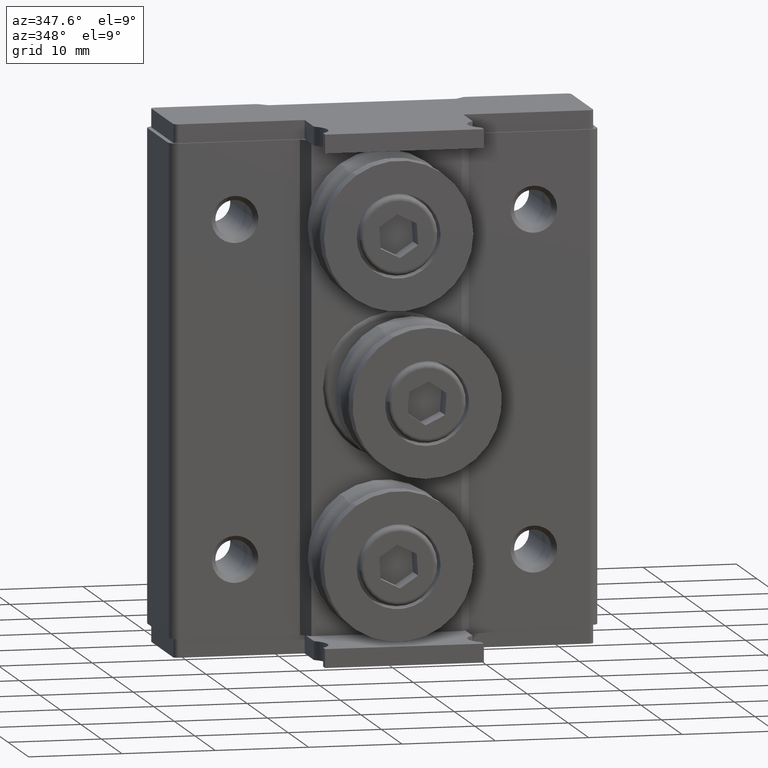
[diagram: clean part render]
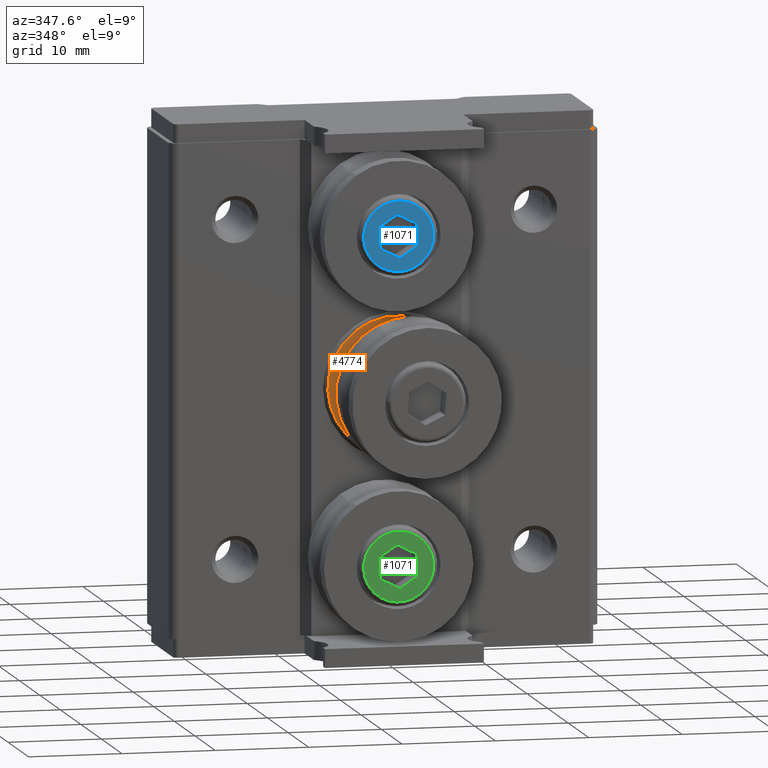
[diagram: same view with three faces highlighted in distinct colors, each labeled with its STEP entity id]
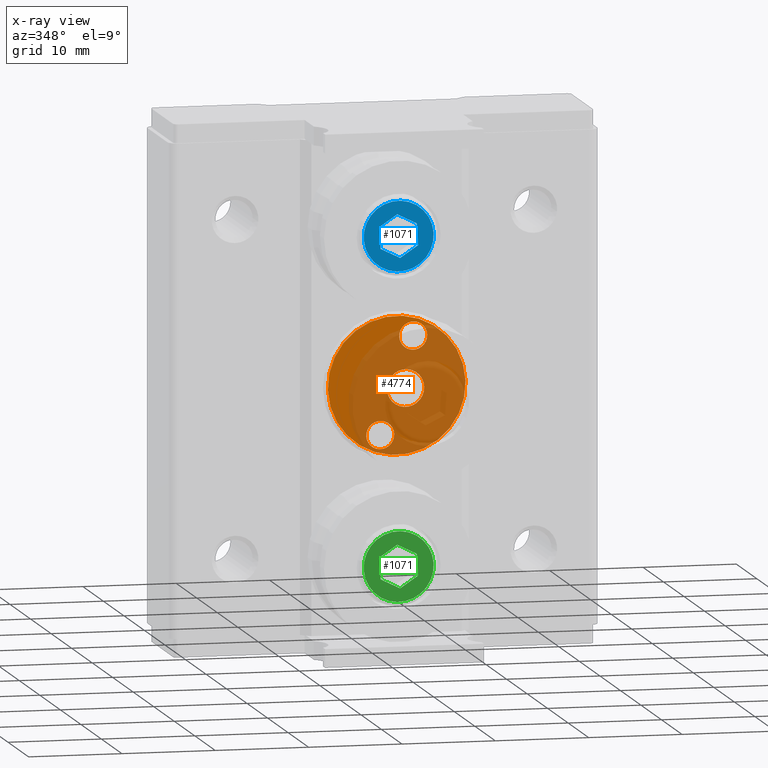
[diagram: x-ray of the same camera — body ghosted, the three highlighted faces saturated]
A machine part, auxiliary view with three faces highlighted in distinct colors.
The next image is the same camera in x-ray (body ghosted, the three faces saturated) — at least one of them is partly hidden behind the body in this view.
Their STEP definitions:

[orange] entity #4774 — the highlighted planar face has unit normal (0, 1, 0).
#120 = CIRCLE ( 'NONE', #1604, 7.375000000000000000 ) ;
#190 = CARTESIAN_POINT ( 'NONE',  ( 0.000000000000000000, 0.000000000000000000, 0.000000000000000000 ) ) ;
#455 = DIRECTION ( 'NONE',  ( 0.000000000000000000, 0.000000000000000000, 1.000000000000000000 ) ) ;
#588 = DIRECTION ( 'NONE',  ( 0.000000000000000000, 0.000000000000000000, 1.000000000000000000 ) ) ;
#740 = VERTEX_POINT ( 'NONE', #4454 ) ;
#776 = AXIS2_PLACEMENT_3D ( 'NONE', #1364, #1699, #3202 ) ;
#797 = DIRECTION ( 'NONE',  ( 0.000000000000000000, 0.000000000000000000, 1.000000000000000000 ) ) ;
#809 = ORIENTED_EDGE ( 'NONE', *, *, #3920, .T. ) ;
#811 = EDGE_CURVE ( 'NONE', #1679, #1968, #1495, .T. ) ;
#941 = DIRECTION ( 'NONE',  ( 0.000000000000000000, 0.000000000000000000, 1.000000000000000000 ) ) ;
#945 = CIRCLE ( 'NONE', #3666, 2.000000000000000000 ) ;
#958 = CARTESIAN_POINT ( 'NONE',  ( 0.000000000000000000, 0.000000000000000000, 5.500000000000000000 ) ) ;
#996 = CARTESIAN_POINT ( 'NONE',  ( 1.836970198721029934E-16, 0.000000000000000000, 3.999999999999999112 ) ) ;
#1007 = DIRECTION ( 'NONE',  ( -0.000000000000000000, -1.000000000000000000, -0.000000000000000000 ) ) ;
#1153 = DIRECTION ( 'NONE',  ( 0.000000000000000000, 0.000000000000000000, 1.000000000000000000 ) ) ;
#1176 = CIRCLE ( 'NONE', #3885, 1.500000000000000444 ) ;
#1228 = EDGE_CURVE ( 'NONE', #3720, #1367, #1754, .T. ) ;
#1229 = CARTESIAN_POINT ( 'NONE',  ( -1.000000000000000000, 0.000000000000000000, 0.000000000000000000 ) ) ;
#1312 = ORIENTED_EDGE ( 'NONE', *, *, #811, .T. ) ;
#1364 = CARTESIAN_POINT ( 'NONE',  ( 0.000000000000000000, 0.000000000000000000, 0.000000000000000000 ) ) ;
#1367 = VERTEX_POINT ( 'NONE', #3706 ) ;
#1412 = FACE_BOUND ( 'NONE', #2859, .T. ) ;
#1417 = CIRCLE ( 'NONE', #3262, 1.500000000000000444 ) ;
#1495 = CIRCLE ( 'NONE', #4210, 2.000000000000000000 ) ;
#1577 = VERTEX_POINT ( 'NONE', #3833 ) ;
#1604 = AXIS2_PLACEMENT_3D ( 'NONE', #190, #1701, #3988 ) ;
#1621 = VERTEX_POINT ( 'NONE', #1739 ) ;
#1679 = VERTEX_POINT ( 'NONE', #2456 ) ;
#1699 = DIRECTION ( 'NONE',  ( 0.000000000000000000, 1.000000000000000000, 0.000000000000000000 ) ) ;
#1701 = DIRECTION ( 'NONE',  ( -0.000000000000000000, -1.000000000000000000, -0.000000000000000000 ) ) ;
#1739 = CARTESIAN_POINT ( 'NONE',  ( 0.000000000000000000, 0.000000000000000000, -3.999999999999999112 ) ) ;
#1741 = CARTESIAN_POINT ( 'NONE',  ( 0.000000000000000000, 0.000000000000000000, -5.500000000000000000 ) ) ;
#1754 = CIRCLE ( 'NONE', #3305, 7.375000000000000000 ) ;
#1802 = CARTESIAN_POINT ( 'NONE',  ( 0.000000000000000000, 0.000000000000000000, -5.500000000000000000 ) ) ;
#1968 = VERTEX_POINT ( 'NONE', #2151 ) ;
#2057 = DIRECTION ( 'NONE',  ( 0.000000000000000000, 0.000000000000000000, 1.000000000000000000 ) ) ;
#2093 = ORIENTED_EDGE ( 'NONE', *, *, #3816, .T. ) ;
#2102 = CIRCLE ( 'NONE', #3419, 1.500000000000000444 ) ;
#2151 = CARTESIAN_POINT ( 'NONE',  ( -1.000000000000000000, 0.000000000000000000, 2.000000000000000000 ) ) ;
#2153 = DIRECTION ( 'NONE',  ( 0.000000000000000000, 1.000000000000000000, 0.000000000000000000 ) ) ;
#2287 = VERTEX_POINT ( 'NONE', #996 ) ;
#2312 = ORIENTED_EDGE ( 'NONE', *, *, #3598, .T. ) ;
#2323 = EDGE_LOOP ( 'NONE', ( #2312, #1312 ) ) ;
#2456 = CARTESIAN_POINT ( 'NONE',  ( -0.9999999999999997780, 0.000000000000000000, -2.000000000000000000 ) ) ;
#2738 = EDGE_CURVE ( 'NONE', #1367, #3720, #120, .T. ) ;
#2749 = ORIENTED_EDGE ( 'NONE', *, *, #4626, .T. ) ;
#2778 = CARTESIAN_POINT ( 'NONE',  ( 0.000000000000000000, 0.000000000000000000, 5.500000000000000000 ) ) ;
#2792 = AXIS2_PLACEMENT_3D ( 'NONE', #958, #2153, #588 ) ;
#2837 = EDGE_LOOP ( 'NONE', ( #4037, #3444 ) ) ;
#2859 = EDGE_LOOP ( 'NONE', ( #2093, #4408 ) ) ;
#2928 = EDGE_CURVE ( 'NONE', #740, #1621, #1176, .T. ) ;
#3202 = DIRECTION ( 'NONE',  ( 0.000000000000000000, -0.000000000000000000, 1.000000000000000000 ) ) ;
#3218 = CARTESIAN_POINT ( 'NONE',  ( 0.000000000000000000, 0.000000000000000000, 0.000000000000000000 ) ) ;
#3262 = AXIS2_PLACEMENT_3D ( 'NONE', #1741, #4358, #3271 ) ;
#3269 = CIRCLE ( 'NONE', #2792, 1.500000000000000444 ) ;
#3271 = DIRECTION ( 'NONE',  ( 0.000000000000000000, 0.000000000000000000, 1.000000000000000000 ) ) ;
#3286 = DIRECTION ( 'NONE',  ( 0.000000000000000000, 1.000000000000000000, 0.000000000000000000 ) ) ;
#3305 = AXIS2_PLACEMENT_3D ( 'NONE', #3218, #1007, #2057 ) ;
#3344 = CARTESIAN_POINT ( 'NONE',  ( -1.000000000000000000, 0.000000000000000000, 0.000000000000000000 ) ) ;
#3419 = AXIS2_PLACEMENT_3D ( 'NONE', #2778, #4268, #941 ) ;
#3444 = ORIENTED_EDGE ( 'NONE', *, *, #1228, .T. ) ;
#3465 = CARTESIAN_POINT ( 'NONE',  ( 9.337931843498566880E-16, 0.000000000000000000, -7.375000000000000000 ) ) ;
#3598 = EDGE_CURVE ( 'NONE', #1968, #1679, #945, .T. ) ;
#3666 = AXIS2_PLACEMENT_3D ( 'NONE', #3344, #4119, #797 ) ;
#3706 = CARTESIAN_POINT ( 'NONE',  ( 0.000000000000000000, 0.000000000000000000, 7.375000000000000000 ) ) ;
#3720 = VERTEX_POINT ( 'NONE', #3465 ) ;
#3749 = DIRECTION ( 'NONE',  ( 0.000000000000000000, 1.000000000000000000, 0.000000000000000000 ) ) ;
#3816 = EDGE_CURVE ( 'NONE', #1621, #740, #1417, .T. ) ;
#3833 = CARTESIAN_POINT ( 'NONE',  ( 0.000000000000000000, 0.000000000000000000, 7.000000000000000000 ) ) ;
#3885 = AXIS2_PLACEMENT_3D ( 'NONE', #1802, #3286, #455 ) ;
#3920 = EDGE_CURVE ( 'NONE', #1577, #2287, #3269, .T. ) ;
#3986 = FACE_BOUND ( 'NONE', #4488, .T. ) ;
#3988 = DIRECTION ( 'NONE',  ( 0.000000000000000000, 0.000000000000000000, 1.000000000000000000 ) ) ;
#4037 = ORIENTED_EDGE ( 'NONE', *, *, #2738, .T. ) ;
#4119 = DIRECTION ( 'NONE',  ( 0.000000000000000000, 1.000000000000000000, 0.000000000000000000 ) ) ;
#4210 = AXIS2_PLACEMENT_3D ( 'NONE', #1229, #3749, #1153 ) ;
#4268 = DIRECTION ( 'NONE',  ( 0.000000000000000000, 1.000000000000000000, 0.000000000000000000 ) ) ;
#4342 = FACE_BOUND ( 'NONE', #2323, .T. ) ;
#4358 = DIRECTION ( 'NONE',  ( 0.000000000000000000, 1.000000000000000000, 0.000000000000000000 ) ) ;
#4371 = FACE_OUTER_BOUND ( 'NONE', #2837, .T. ) ;
#4408 = ORIENTED_EDGE ( 'NONE', *, *, #2928, .T. ) ;
#4454 = CARTESIAN_POINT ( 'NONE',  ( 1.836970198721029934E-16, 0.000000000000000000, -7.000000000000000000 ) ) ;
#4488 = EDGE_LOOP ( 'NONE', ( #809, #2749 ) ) ;
#4626 = EDGE_CURVE ( 'NONE', #2287, #1577, #2102, .T. ) ;
#4675 = PLANE ( 'NONE',  #776 ) ;
#4774 = ADVANCED_FACE ( 'NONE', ( #4371, #1412, #3986, #4342 ), #4675, .F. ) ;

[blue] entity #1071 — the highlighted planar face has unit normal (0, -1, 0).
#131 = AXIS2_PLACEMENT_3D ( 'NONE', #2279, #527, #4199 ) ;
#175 = VERTEX_POINT ( 'NONE', #3032 ) ;
#179 = CARTESIAN_POINT ( 'NONE',  ( 2.000000000000000888, 2.320948082142296087, -2.385244779468109755E-15 ) ) ;
#242 = VECTOR ( 'NONE', #437, 1000.000000000000114 ) ;
#263 = CARTESIAN_POINT ( 'NONE',  ( 2.000000000000000888, 2.320948082142296087, -2.385244779468109755E-15 ) ) ;
#264 = CARTESIAN_POINT ( 'NONE',  ( 2.000000000000000888, 4.898587196589413815E-16, -3.750000000000000444 ) ) ;
#410 = ORIENTED_EDGE ( 'NONE', *, *, #2046, .F. ) ;
#437 = DIRECTION ( 'NONE',  ( 0.000000000000000000, 0.4999999999999991118, -0.8660254037844390407 ) ) ;
#477 = CIRCLE ( 'NONE', #4116, 3.750000000000000444 ) ;
#504 = VERTEX_POINT ( 'NONE', #3801 ) ;
#518 = VERTEX_POINT ( 'NONE', #2752 ) ;
#527 = DIRECTION ( 'NONE',  ( -1.000000000000000000, 0.000000000000000000, 0.000000000000000000 ) ) ;
#531 = EDGE_CURVE ( 'NONE', #3766, #658, #1648, .T. ) ;
#560 = EDGE_CURVE ( 'NONE', #4760, #504, #3514, .T. ) ;
#606 = DIRECTION ( 'NONE',  ( -1.000000000000000000, 0.000000000000000000, 0.000000000000000000 ) ) ;
#658 = VERTEX_POINT ( 'NONE', #4405 ) ;
#685 = CARTESIAN_POINT ( 'NONE',  ( 2.000000000000000888, 0.000000000000000000, 0.000000000000000000 ) ) ;
#778 = CARTESIAN_POINT ( 'NONE',  ( 2.000000000000000888, -1.160474041071144935, 2.010000000000001563 ) ) ;
#1068 = VECTOR ( 'NONE', #1519, 1000.000000000000000 ) ;
#1071 = ADVANCED_FACE ( 'NONE', ( #3808, #2737 ), #3468, .T. ) ;
#1081 = VECTOR ( 'NONE', #2368, 1000.000000000000227 ) ;
#1319 = VECTOR ( 'NONE', #2452, 1000.000000000000114 ) ;
#1327 = AXIS2_PLACEMENT_3D ( 'NONE', #3900, #606, #2754 ) ;
#1519 = DIRECTION ( 'NONE',  ( 0.000000000000000000, -1.000000000000000000, 1.121130297565044424E-15 ) ) ;
#1602 = ORIENTED_EDGE ( 'NONE', *, *, #560, .F. ) ;
#1648 = LINE ( 'NONE', #3899, #2161 ) ;
#1733 = EDGE_CURVE ( 'NONE', #4277, #518, #3346, .T. ) ;
#1787 = VERTEX_POINT ( 'NONE', #1831 ) ;
#1831 = CARTESIAN_POINT ( 'NONE',  ( 2.000000000000000888, 1.160474041071150708, 2.009999999999998455 ) ) ;
#1976 = CARTESIAN_POINT ( 'NONE',  ( 2.000000000000000888, 1.160474041071145601, -2.010000000000000675 ) ) ;
#2046 = EDGE_CURVE ( 'NONE', #504, #3766, #2672, .T. ) ;
#2161 = VECTOR ( 'NONE', #3124, 1000.000000000000114 ) ;
#2185 = VECTOR ( 'NONE', #3673, 1000.000000000000000 ) ;
#2251 = EDGE_CURVE ( 'NONE', #658, #175, #2814, .T. ) ;
#2279 = CARTESIAN_POINT ( 'NONE',  ( 2.000000000000000888, 0.000000000000000000, 0.000000000000000000 ) ) ;
#2368 = DIRECTION ( 'NONE',  ( 0.000000000000000000, -0.5000000000000013323, -0.8660254037844378194 ) ) ;
#2452 = DIRECTION ( 'NONE',  ( 0.000000000000000000, 0.5000000000000011102, 0.8660254037844380415 ) ) ;
#2474 = DIRECTION ( 'NONE',  ( 0.000000000000000000, 0.000000000000000000, 1.000000000000000000 ) ) ;
#2531 = CARTESIAN_POINT ( 'NONE',  ( 2.000000000000000888, -2.320948082142294755, 3.035766082959412415E-15 ) ) ;
#2639 = EDGE_CURVE ( 'NONE', #1787, #4760, #2767, .T. ) ;
#2665 = ORIENTED_EDGE ( 'NONE', *, *, #3989, .T. ) ;
#2672 = LINE ( 'NONE', #1976, #1068 ) ;
#2701 = CARTESIAN_POINT ( 'NONE',  ( 2.000000000000000888, -1.160474041071150042, -2.009999999999998010 ) ) ;
#2737 = FACE_BOUND ( 'NONE', #4699, .T. ) ;
#2752 = CARTESIAN_POINT ( 'NONE',  ( 2.000000000000000888, 0.000000000000000000, 3.750000000000000444 ) ) ;
#2754 = DIRECTION ( 'NONE',  ( 0.000000000000000000, 0.000000000000000000, 1.000000000000000000 ) ) ;
#2767 = LINE ( 'NONE', #3765, #242 ) ;
#2814 = LINE ( 'NONE', #2531, #1319 ) ;
#3032 = CARTESIAN_POINT ( 'NONE',  ( 2.000000000000000888, -1.160474041071144935, 2.010000000000001563 ) ) ;
#3124 = DIRECTION ( 'NONE',  ( 0.000000000000000000, -0.4999999999999987788, 0.8660254037844392627 ) ) ;
#3289 = DIRECTION ( 'NONE',  ( -1.000000000000000000, 0.000000000000000000, 0.000000000000000000 ) ) ;
#3346 = CIRCLE ( 'NONE', #1327, 3.750000000000000444 ) ;
#3378 = ORIENTED_EDGE ( 'NONE', *, *, #4080, .F. ) ;
#3390 = ORIENTED_EDGE ( 'NONE', *, *, #531, .F. ) ;
#3468 = PLANE ( 'NONE',  #131 ) ;
#3514 = LINE ( 'NONE', #179, #1081 ) ;
#3673 = DIRECTION ( 'NONE',  ( 0.000000000000000000, 1.000000000000000000, -1.307985347159218429E-15 ) ) ;
#3765 = CARTESIAN_POINT ( 'NONE',  ( 2.000000000000000888, 1.160474041071150708, 2.009999999999998455 ) ) ;
#3766 = VERTEX_POINT ( 'NONE', #2701 ) ;
#3801 = CARTESIAN_POINT ( 'NONE',  ( 2.000000000000000888, 1.160474041071145601, -2.010000000000000675 ) ) ;
#3808 = FACE_OUTER_BOUND ( 'NONE', #3995, .T. ) ;
#3899 = CARTESIAN_POINT ( 'NONE',  ( 2.000000000000000888, -1.160474041071150042, -2.009999999999998010 ) ) ;
#3900 = CARTESIAN_POINT ( 'NONE',  ( 2.000000000000000888, 0.000000000000000000, 0.000000000000000000 ) ) ;
#3989 = EDGE_CURVE ( 'NONE', #518, #4277, #477, .T. ) ;
#3995 = EDGE_LOOP ( 'NONE', ( #2665, #4656 ) ) ;
#4075 = ORIENTED_EDGE ( 'NONE', *, *, #2251, .F. ) ;
#4080 = EDGE_CURVE ( 'NONE', #175, #1787, #4490, .T. ) ;
#4116 = AXIS2_PLACEMENT_3D ( 'NONE', #685, #3289, #2474 ) ;
#4199 = DIRECTION ( 'NONE',  ( 0.000000000000000000, 0.000000000000000000, 1.000000000000000000 ) ) ;
#4277 = VERTEX_POINT ( 'NONE', #264 ) ;
#4405 = CARTESIAN_POINT ( 'NONE',  ( 2.000000000000000888, -2.320948082142295199, 3.252606517456513302E-15 ) ) ;
#4490 = LINE ( 'NONE', #778, #2185 ) ;
#4656 = ORIENTED_EDGE ( 'NONE', *, *, #1733, .T. ) ;
#4697 = ORIENTED_EDGE ( 'NONE', *, *, #2639, .F. ) ;
#4699 = EDGE_LOOP ( 'NONE', ( #3390, #410, #1602, #4697, #3378, #4075 ) ) ;
#4760 = VERTEX_POINT ( 'NONE', #263 ) ;

[green] entity #1071 — the highlighted planar face has unit normal (0, -1, 0).
#131 = AXIS2_PLACEMENT_3D ( 'NONE', #2279, #527, #4199 ) ;
#175 = VERTEX_POINT ( 'NONE', #3032 ) ;
#179 = CARTESIAN_POINT ( 'NONE',  ( 2.000000000000000888, 2.320948082142296087, -2.385244779468109755E-15 ) ) ;
#242 = VECTOR ( 'NONE', #437, 1000.000000000000114 ) ;
#263 = CARTESIAN_POINT ( 'NONE',  ( 2.000000000000000888, 2.320948082142296087, -2.385244779468109755E-15 ) ) ;
#264 = CARTESIAN_POINT ( 'NONE',  ( 2.000000000000000888, 4.898587196589413815E-16, -3.750000000000000444 ) ) ;
#410 = ORIENTED_EDGE ( 'NONE', *, *, #2046, .F. ) ;
#437 = DIRECTION ( 'NONE',  ( 0.000000000000000000, 0.4999999999999991118, -0.8660254037844390407 ) ) ;
#477 = CIRCLE ( 'NONE', #4116, 3.750000000000000444 ) ;
#504 = VERTEX_POINT ( 'NONE', #3801 ) ;
#518 = VERTEX_POINT ( 'NONE', #2752 ) ;
#527 = DIRECTION ( 'NONE',  ( -1.000000000000000000, 0.000000000000000000, 0.000000000000000000 ) ) ;
#531 = EDGE_CURVE ( 'NONE', #3766, #658, #1648, .T. ) ;
#560 = EDGE_CURVE ( 'NONE', #4760, #504, #3514, .T. ) ;
#606 = DIRECTION ( 'NONE',  ( -1.000000000000000000, 0.000000000000000000, 0.000000000000000000 ) ) ;
#658 = VERTEX_POINT ( 'NONE', #4405 ) ;
#685 = CARTESIAN_POINT ( 'NONE',  ( 2.000000000000000888, 0.000000000000000000, 0.000000000000000000 ) ) ;
#778 = CARTESIAN_POINT ( 'NONE',  ( 2.000000000000000888, -1.160474041071144935, 2.010000000000001563 ) ) ;
#1068 = VECTOR ( 'NONE', #1519, 1000.000000000000000 ) ;
#1071 = ADVANCED_FACE ( 'NONE', ( #3808, #2737 ), #3468, .T. ) ;
#1081 = VECTOR ( 'NONE', #2368, 1000.000000000000227 ) ;
#1319 = VECTOR ( 'NONE', #2452, 1000.000000000000114 ) ;
#1327 = AXIS2_PLACEMENT_3D ( 'NONE', #3900, #606, #2754 ) ;
#1519 = DIRECTION ( 'NONE',  ( 0.000000000000000000, -1.000000000000000000, 1.121130297565044424E-15 ) ) ;
#1602 = ORIENTED_EDGE ( 'NONE', *, *, #560, .F. ) ;
#1648 = LINE ( 'NONE', #3899, #2161 ) ;
#1733 = EDGE_CURVE ( 'NONE', #4277, #518, #3346, .T. ) ;
#1787 = VERTEX_POINT ( 'NONE', #1831 ) ;
#1831 = CARTESIAN_POINT ( 'NONE',  ( 2.000000000000000888, 1.160474041071150708, 2.009999999999998455 ) ) ;
#1976 = CARTESIAN_POINT ( 'NONE',  ( 2.000000000000000888, 1.160474041071145601, -2.010000000000000675 ) ) ;
#2046 = EDGE_CURVE ( 'NONE', #504, #3766, #2672, .T. ) ;
#2161 = VECTOR ( 'NONE', #3124, 1000.000000000000114 ) ;
#2185 = VECTOR ( 'NONE', #3673, 1000.000000000000000 ) ;
#2251 = EDGE_CURVE ( 'NONE', #658, #175, #2814, .T. ) ;
#2279 = CARTESIAN_POINT ( 'NONE',  ( 2.000000000000000888, 0.000000000000000000, 0.000000000000000000 ) ) ;
#2368 = DIRECTION ( 'NONE',  ( 0.000000000000000000, -0.5000000000000013323, -0.8660254037844378194 ) ) ;
#2452 = DIRECTION ( 'NONE',  ( 0.000000000000000000, 0.5000000000000011102, 0.8660254037844380415 ) ) ;
#2474 = DIRECTION ( 'NONE',  ( 0.000000000000000000, 0.000000000000000000, 1.000000000000000000 ) ) ;
#2531 = CARTESIAN_POINT ( 'NONE',  ( 2.000000000000000888, -2.320948082142294755, 3.035766082959412415E-15 ) ) ;
#2639 = EDGE_CURVE ( 'NONE', #1787, #4760, #2767, .T. ) ;
#2665 = ORIENTED_EDGE ( 'NONE', *, *, #3989, .T. ) ;
#2672 = LINE ( 'NONE', #1976, #1068 ) ;
#2701 = CARTESIAN_POINT ( 'NONE',  ( 2.000000000000000888, -1.160474041071150042, -2.009999999999998010 ) ) ;
#2737 = FACE_BOUND ( 'NONE', #4699, .T. ) ;
#2752 = CARTESIAN_POINT ( 'NONE',  ( 2.000000000000000888, 0.000000000000000000, 3.750000000000000444 ) ) ;
#2754 = DIRECTION ( 'NONE',  ( 0.000000000000000000, 0.000000000000000000, 1.000000000000000000 ) ) ;
#2767 = LINE ( 'NONE', #3765, #242 ) ;
#2814 = LINE ( 'NONE', #2531, #1319 ) ;
#3032 = CARTESIAN_POINT ( 'NONE',  ( 2.000000000000000888, -1.160474041071144935, 2.010000000000001563 ) ) ;
#3124 = DIRECTION ( 'NONE',  ( 0.000000000000000000, -0.4999999999999987788, 0.8660254037844392627 ) ) ;
#3289 = DIRECTION ( 'NONE',  ( -1.000000000000000000, 0.000000000000000000, 0.000000000000000000 ) ) ;
#3346 = CIRCLE ( 'NONE', #1327, 3.750000000000000444 ) ;
#3378 = ORIENTED_EDGE ( 'NONE', *, *, #4080, .F. ) ;
#3390 = ORIENTED_EDGE ( 'NONE', *, *, #531, .F. ) ;
#3468 = PLANE ( 'NONE',  #131 ) ;
#3514 = LINE ( 'NONE', #179, #1081 ) ;
#3673 = DIRECTION ( 'NONE',  ( 0.000000000000000000, 1.000000000000000000, -1.307985347159218429E-15 ) ) ;
#3765 = CARTESIAN_POINT ( 'NONE',  ( 2.000000000000000888, 1.160474041071150708, 2.009999999999998455 ) ) ;
#3766 = VERTEX_POINT ( 'NONE', #2701 ) ;
#3801 = CARTESIAN_POINT ( 'NONE',  ( 2.000000000000000888, 1.160474041071145601, -2.010000000000000675 ) ) ;
#3808 = FACE_OUTER_BOUND ( 'NONE', #3995, .T. ) ;
#3899 = CARTESIAN_POINT ( 'NONE',  ( 2.000000000000000888, -1.160474041071150042, -2.009999999999998010 ) ) ;
#3900 = CARTESIAN_POINT ( 'NONE',  ( 2.000000000000000888, 0.000000000000000000, 0.000000000000000000 ) ) ;
#3989 = EDGE_CURVE ( 'NONE', #518, #4277, #477, .T. ) ;
#3995 = EDGE_LOOP ( 'NONE', ( #2665, #4656 ) ) ;
#4075 = ORIENTED_EDGE ( 'NONE', *, *, #2251, .F. ) ;
#4080 = EDGE_CURVE ( 'NONE', #175, #1787, #4490, .T. ) ;
#4116 = AXIS2_PLACEMENT_3D ( 'NONE', #685, #3289, #2474 ) ;
#4199 = DIRECTION ( 'NONE',  ( 0.000000000000000000, 0.000000000000000000, 1.000000000000000000 ) ) ;
#4277 = VERTEX_POINT ( 'NONE', #264 ) ;
#4405 = CARTESIAN_POINT ( 'NONE',  ( 2.000000000000000888, -2.320948082142295199, 3.252606517456513302E-15 ) ) ;
#4490 = LINE ( 'NONE', #778, #2185 ) ;
#4656 = ORIENTED_EDGE ( 'NONE', *, *, #1733, .T. ) ;
#4697 = ORIENTED_EDGE ( 'NONE', *, *, #2639, .F. ) ;
#4699 = EDGE_LOOP ( 'NONE', ( #3390, #410, #1602, #4697, #3378, #4075 ) ) ;
#4760 = VERTEX_POINT ( 'NONE', #263 ) ;